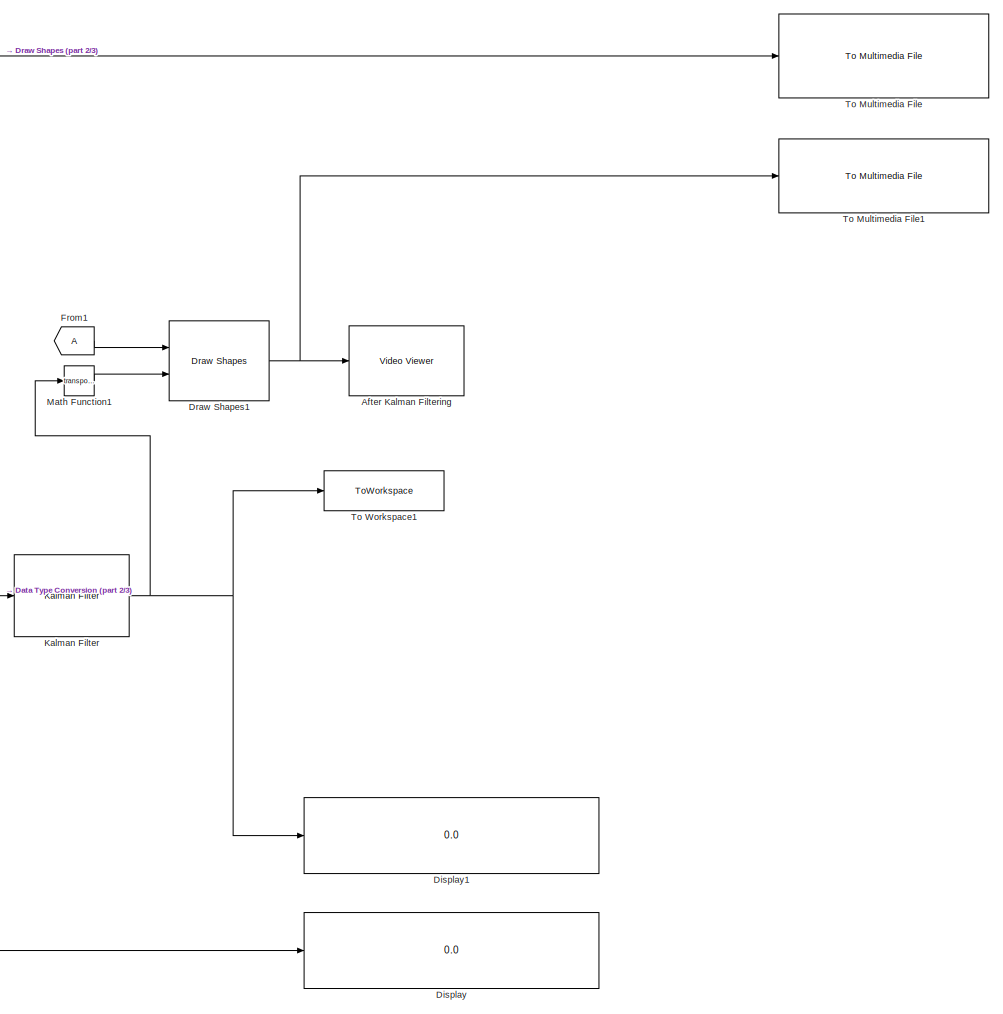
[diagram: root canvas - part 1/3, right side, full height]
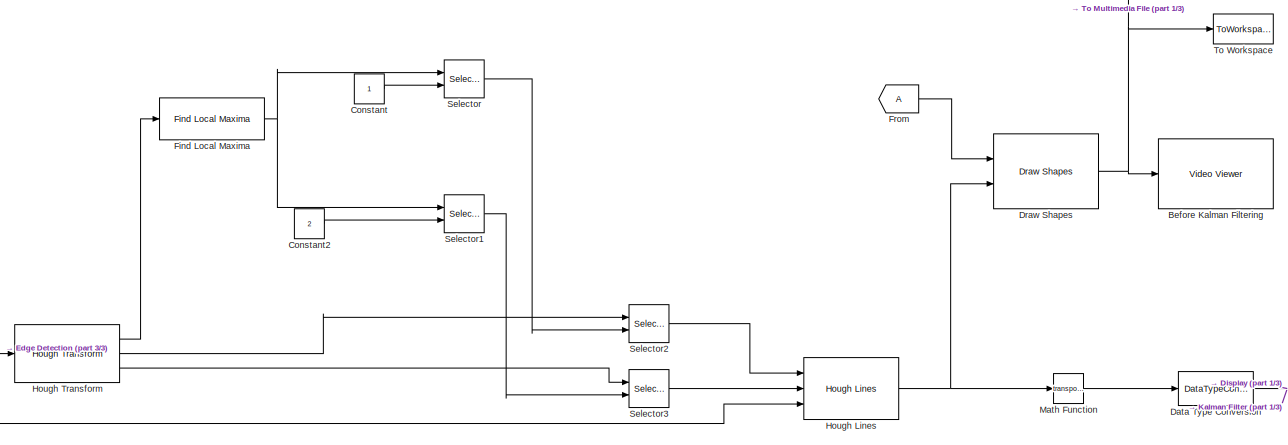
[diagram: root canvas - part 2/3, central region]
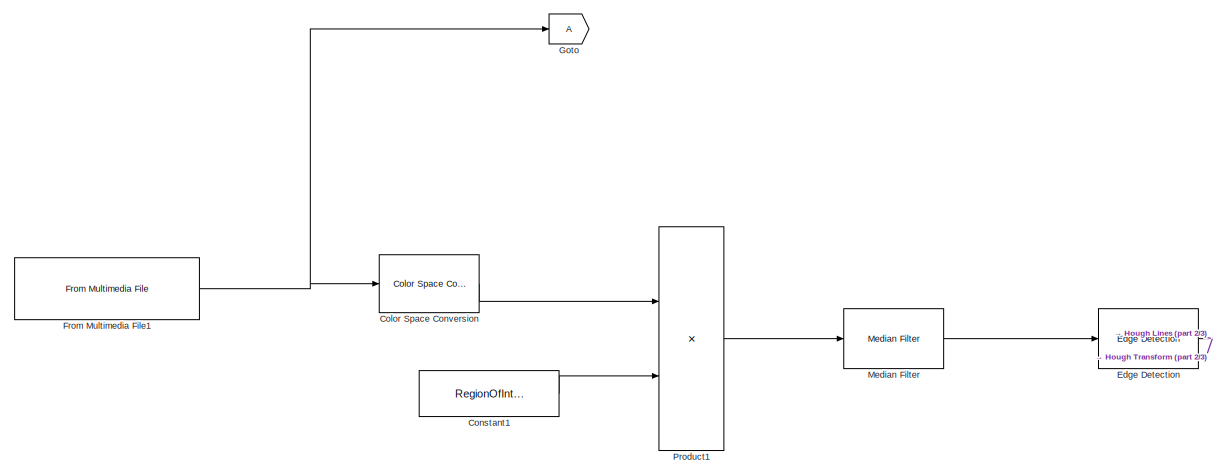
[diagram: root canvas - part 3/3, middle left region]
MODEL slx_bd66256e45df
KIND model
CONFIG AbsTol = auto
CONFIG FixedStep = auto
CONFIG MaxStep = auto
CONFIG MinStep = auto
CONFIG PreLoadFcn = load 'RegionInterest.mat'
CONFIG RelTol = 1e-3
CONFIG SampleTimeConstraint = Unconstrained
CONFIG Solver = ode45
CONFIG SolverMode = SingleTasking
CONFIG SolverName = ode45
CONFIG StartTime = 0.0
CONFIG StopTime = 17.0
BLOCK [Reference] After Kalman Filtering  REF=visionsinks/Video Viewer
  AxisZoom = on
  DefaultConfigurationName = vipscopes.VideoViewerScopeCfg
  FigPos = [969 1030 944 923]
  OpenAtMdlStart = on
  Ports = [1]
  SourceBlock = visionsinks/Video Viewer
  SourceType = Video Viewer
  UserDataPersistent = on
  colormapValue = gray(256)
  imagePorts = One multidimensional signal
  inputType = Obsolete7b
  maxInputVal = 255
  minInputVal = 0
  specRange = off
  trueSizedOnce = off
  useColorMap = off
BLOCK [Reference] Before Kalman Filtering  REF=visionsinks/Video Viewer
  AxisZoom = on
  DefaultConfigurationName = vipscopes.VideoViewerScopeCfg
  FigPos = [9 1030 944 923]
  OpenAtMdlStart = on
  Ports = [1]
  SourceBlock = visionsinks/Video Viewer
  SourceType = Video Viewer
  UserDataPersistent = on
  colormapValue = gray(256)
  imagePorts = One multidimensional signal
  inputType = Obsolete7b
  maxInputVal = 255
  minInputVal = 0
  specRange = off
  trueSizedOnce = off
  useColorMap = off
BLOCK [Reference] Color Space Conversion  REF=visionconversions/Color Space
 Conversion
  Ports = [1, 1]
  SourceBlock = visionconversions/Color Space\n Conversion
  SourceType = Color Space Conversion
  conversion = Obsolete
  conversionActive = R'G'B' to intensity
  imagePorts = One multidimensional signal
  rec = Rec. 709 (HDTV)
  sys = 1125/60/2:1
  wp_str = D65
BLOCK [Constant] Constant
BLOCK [Constant] Constant1
  Value = RegionOfInterestLane
BLOCK [Constant] Constant2
  Value = 2
BLOCK [DataTypeConversion] Data Type Conversion
  OutDataTypeStr = double
  RndMeth = Floor
  SaturateOnIntegerOverflow = off
BLOCK [Display] Display
  Decimation = 3
  Ports = [1]
BLOCK [Display] Display1
  Decimation = 3
  Ports = [1]
BLOCK [Reference] Draw Shapes  REF=visiontextngfix/Draw Shapes
  LockScale = off
  Ports = [2, 1]
  SourceBlock = visiontextngfix/Draw Shapes
  SourceType = Draw Shapes
  accumFracLength = 14
  accumMode = Same as product output
  accumWordLength = 32
  antialiasing = off
  color = [255 0 0]
  display = User-specified value
  fill = off
  fillClrSource = Specify via dialog
  imagePorts = One multidimensional signal
  inType = Obsolete
  intensity = 200
  lineWidth = 4
  memoryFracLength = 14
  memoryMode = Specify word length
  memoryWordLength = 16
  opacity = 0.6
  overflowMode = off
  prodOutputFracLength = 14
  prodOutputMode = Binary point scaling
  prodOutputWordLength = 32
  roundingMode = Floor
  shape = Lines
  viewport = Entire image
BLOCK [Reference] Draw Shapes1  REF=visiontextngfix/Draw Shapes
  LockScale = off
  Ports = [2, 1]
  SourceBlock = visiontextngfix/Draw Shapes
  SourceType = Draw Shapes
  accumFracLength = 14
  accumMode = Same as product output
  accumWordLength = 32
  antialiasing = off
  color = [0 0 255]
  display = User-specified value
  fill = off
  fillClrSource = Specify via dialog
  imagePorts = One multidimensional signal
  inType = Obsolete
  intensity = 200
  lineWidth = 4
  memoryFracLength = 14
  memoryMode = Specify word length
  memoryWordLength = 16
  opacity = 0.6
  overflowMode = off
  prodOutputFracLength = 14
  prodOutputMode = Binary point scaling
  prodOutputWordLength = 32
  roundingMode = Floor
  shape = Lines
  viewport = Entire image
BLOCK [Reference] Edge Detection  REF=visionanalysis/Edge Detection
  LockScale = off
  Ports = [1, 1]
  SourceBlock = visionanalysis/Edge Detection
  SourceType = Edge Detection
  accumFracLength = 8
  accumMode = Same as product output
  accumWordLength = 32
  autoPercent = 70
  edgeThinning = off
  method = Sobel
  outputFracLength = 4
  outputMode = Same as first input
  outputType = Binary image
  outputWordLength = 16
  overflowMode = off
  prodOutputFracLength = 8
  prodOutputMode = Binary point scaling
  prodOutputWordLength = 32
  roundingMode = Floor
  sigma = 1
  threshold = 20
  thresholdSource = Input port
  thresholdTuning = 4
  threshold_canny = [0.25 0.60]
  userDefinedThreshold = off
BLOCK [Reference] Find Local Maxima  REF=visionstatistics/Find Local Maxima
  Ports = [1, 1]
  SourceBlock = visionstatistics/Find Local Maxima
  SourceType = Find Local Maxima
  dt_count = uint32
  dt_peak = uint32
  inputIsHough = on
  isOutVarDim = on
  nhood_size = [5 7]
  num_peaks = 1
  src_thresh = Obsolete9b
  src_thresh_inuse = Specify via dialog
  threshold = 10
BLOCK [From] From
BLOCK [Reference] From Multimedia File1  REF=dspvision/From Multimedia File
  Ports = [0, 1]
  SourceBlock = dspvision/From Multimedia File
  SourceType = From Multimedia File
  audioDataType = int16
  audioFrameSize = 1024
  colorVideoFormat = One multidimensional signal
  computeAudioFrameSize = off
  dataOrg = Column-major
  fourcc = RGB
  inheritSampleTime = on
  inputFilename = <userpath>\Desktop\Video.mp4
  isIntensityVideo = off
  loop = on
  noAudioOutput = off
  numPlays = inf
  outSamplingMode = Sample based
  outputEOF = off
  outputStreams = Video only
  userDefinedSampleTime = 1/30
  videoDataType = single
BLOCK [From] From1
BLOCK [Goto] Goto
BLOCK [Reference] Hough Lines  REF=visiontransforms/Hough Lines
  LockScale = off
  Ports = [3, 1]
  SourceBlock = visiontransforms/Hough Lines
  SourceType = Hough Lines
  accumFracLength = 16
  accumMode = Same as product output
  accumWordLength = 32
  firstCoeffFracLength = 15
  firstCoeffMode = Specify word length
  firstCoeffWordLength = 16
  overflowMode = on
  prodOutputFracLength = 16
  prodOutputMode = Binary point scaling
  prodOutputWordLength = 32
  roundingMode = Nearest
  sineCompMethod = Trigonometric function
  thetaRes = pi/180
BLOCK [Reference] Hough Transform  REF=visiontransforms/Hough Transform
  LockScale = off
  Ports = [1, 3]
  SourceBlock = visiontransforms/Hough Transform
  SourceType = Hough Transform
  accumFracLength = 20
  accumMode = Binary point scaling
  accumWordLength = 32
  firstCoeffFracLength = 14
  firstCoeffMode = Binary point scaling
  firstCoeffWordLength = 16
  memoryFracLength = 16
  memoryMode = Binary point scaling
  memoryWordLength = 32
  out_theta_rho = on
  outdtmode = double
  outputFracLength = 0
  outputMode = Binary point scaling
  outputWordLength = 16
  overflowMode = on
  prodOutputFracLength = 20
  prodOutputMode = Binary point scaling
  prodOutputWordLength = 32
  rho_res = 1
  roundingMode = Nearest
  secondCoeffFracLength = 16
  secondCoeffMode = Binary point scaling
  secondCoeffWordLength = 32
  theta_res = pi/180
BLOCK [Reference] Kalman Filter  REF=dspadpt3/Kalman Filter
  A = [1 0 0 0; 0 1 0 0; 0 0 1 0;0 0 0 1]
  H = [1 0 0 0; 0 1 0 0; 0 0 1 0; 0 0 0 1]
  P = 10*eye(4)
  Ports = [1, 1]
  Q = 0.05*eye(4)
  R = eye(4)
  SourceBlock = dspadpt3/Kalman Filter
  SourceType = Kalman Filter
  X = zeros([4, 1])
  isOutputEstError = off
  isOutputEstMeasure = on
  isOutputEstState = off
  isOutputPrdError = off
  isOutputPrdMeasure = off
  isOutputPrdState = off
  isReset = on
  num_targets = 1
  sourceEnable = Always
  sourceMeasure = Specify via Dialog
BLOCK [Math] Math Function
  Operator = transpose
  Ports = [1, 1]
BLOCK [Math] Math Function1
  Operator = transpose
  Ports = [1, 1]
BLOCK [Reference] Median Filter  REF=visionanalysis/Median Filter
  LockScale = off
  Ports = [1, 1]
  SourceBlock = visionanalysis/Median Filter
  SourceType = Median Filter
  accumFracLength = 30
  accumMode = Same as input
  accumWordLength = 32
  nghbood = [5 5]
  outSize = Same as input port I
  outputFracLength = 15
  outputMode = Same as input
  outputWordLength = 16
  overflowMode = off
  padSrc = Specify via dialog
  padType = Symmetric
  padVal = 0
  prodOutputFracLength = 30
  prodOutputMode = Same as input
  prodOutputWordLength = 32
  roundingMode = Floor
BLOCK [Product] Product1
  InputSameDT = off
  OutDataTypeStr = Inherit: Inherit via internal rule
  Ports = [2, 1]
  RndMeth = Floor
  SaturateOnIntegerOverflow = off
BLOCK [Selector] Selector
  IndexOptions = Index vector (port)
  InputPortWidth = 2
  Ports = [2, 1]
BLOCK [Selector] Selector1
  IndexOptions = Index vector (port)
  InputPortWidth = 2
  Ports = [2, 1]
BLOCK [Selector] Selector2
  IndexOptions = Select all,Index vector (port)
  Indices = 1,1
  InputPortWidth = 2
  NumberOfDimensions = 2
  OutputSizes = 1,1
  Ports = [2, 1]
BLOCK [Selector] Selector3
  IndexOptions = Select all,Index vector (port)
  Indices = 1,1
  InputPortWidth = 2
  NumberOfDimensions = 2
  OutputSizes = 1,1
  Ports = [2, 1]
BLOCK [Reference] To Multimedia File  REF=dspvision/To Multimedia File
  Commented = on
  Ports = [1]
  SourceBlock = dspvision/To Multimedia File
  SourceType = To Multimedia File
  audioCompressor = None (uncompressed)
  audioDatatype = Determine from input data type
  fileType = AVI
  fourcc = RGB
  imagePorts = One multidimensional signal
  mj2000CompFactor = 10
  outputFilename = Before Kalman Filtering.avi
  streamSelection = Video only
  videoCompressor = None (uncompressed)
  videoQuality = 75
BLOCK [Reference] To Multimedia File1  REF=dspvision/To Multimedia File
  Commented = on
  Ports = [1]
  SourceBlock = dspvision/To Multimedia File
  SourceType = To Multimedia File
  audioCompressor = None (uncompressed)
  audioDatatype = Determine from input data type
  fileType = AVI
  fourcc = RGB
  imagePorts = One multidimensional signal
  mj2000CompFactor = 10
  outputFilename = After Kalman Filtering.avi
  streamSelection = Video only
  videoCompressor = None (uncompressed)
  videoQuality = 75
BLOCK [ToWorkspace] To Workspace
  FixptAsFi = on
  MaxDataPoints = inf
  Ports = [1]
  SampleTime = -1
  Save2DSignal = 3-D array (concatenate along third dimension)
  SaveFormat = Timeseries
  VariableName = HoughLines
BLOCK [ToWorkspace] To Workspace1
  FixptAsFi = on
  MaxDataPoints = inf
  Ports = [1]
  SampleTime = -1
  Save2DSignal = 3-D array (concatenate along third dimension)
  SaveFormat = Timeseries
  VariableName = KalmanHoughLines
LINE Color Space Conversion:1 -> Product1:1
LINE Constant1:1 -> Product1:2
LINE Constant2:1 -> Selector1:2
LINE Constant:1 -> Selector:2
NET Data Type Conversion:1 -> Display:1, Kalman Filter:1
NET Draw Shapes1:1 -> After Kalman Filtering:1, To Multimedia File1:1
NET Draw Shapes:1 -> Before Kalman Filtering:1, To Multimedia File:1, To Workspace:1
NET Edge Detection:1 -> Hough Lines:3, Hough Transform:1
NET Find Local Maxima:1 -> Selector1:1, Selector:1
NET From Multimedia File1:1 -> Color Space Conversion:1, Goto:1
LINE From1:1 -> Draw Shapes1:1
LINE From:1 -> Draw Shapes:1
NET Hough Lines:1 -> Draw Shapes:2, Math Function:1
LINE Hough Transform:1 -> Find Local Maxima:1
LINE Hough Transform:2 -> Selector2:1
LINE Hough Transform:3 -> Selector3:1
NET Kalman Filter:1 -> Display1:1, Math Function1:1, To Workspace1:1
LINE Math Function1:1 -> Draw Shapes1:2
LINE Math Function:1 -> Data Type Conversion:1
LINE Median Filter:1 -> Edge Detection:1
LINE Product1:1 -> Median Filter:1
LINE Selector1:1 -> Selector3:2
LINE Selector2:1 -> Hough Lines:1
LINE Selector3:1 -> Hough Lines:2
LINE Selector:1 -> Selector2:2
note: NET lines group one-source signal fan-out (src -> all destinations, sorted); 1:1 wires keep LINE
